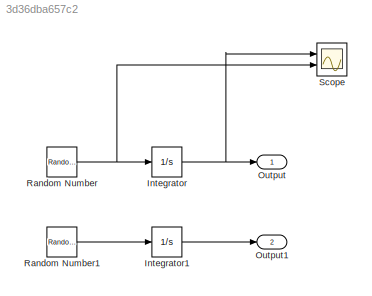
MODEL slx_3d36dba657c2
KIND model
CONFIG AbsTol = auto
CONFIG EnableMultiTasking = off
CONFIG FixedStep = 0.1
CONFIG MaxStep = auto
CONFIG MinStep = auto
CONFIG RelTol = 1e-3
CONFIG SampleTimeConstraint = Unconstrained
CONFIG SolverName = ode45
CONFIG StartTime = 1
CONFIG StopTime = 10
BLOCK [Integrator] Integrator
  Ports = [1, 1]
BLOCK [Integrator] Integrator1
  Ports = [1, 1]
BLOCK [Outport] Output
BLOCK [Outport] Output1
  Port = 2
BLOCK [RandomNumber] Random Number
  SampleTime = 0.1
  Seed = seed61
BLOCK [RandomNumber] Random Number1
  SampleTime = 0.1
  Seed = seed62
BLOCK [Scope] Scope
  Floating = off
  NumInputPorts = 2
  Ports = [2]
  ScopeSpecificationString = Simulink.scopes.TimeScopeBlockCfg('CurrentConfiguration', extmgr.ConfigurationSet(extmgr.Configuration('Core','General UI',true),extmgr.Configuration('Core','Source UI',true),extmgr.Configuration('Sources','WiredSimulink',true),extmgr.Configuration('Visuals','Time Domain',true,'SerializedDisplays',{struct('MinYLimReal','-5.54552','MaxYLimReal','13.34197','YLabelReal','','MinYLimMag','0.00000','Max...<+1348ch>
LINE Integrator1:1 -> Output1:1
NET Integrator:1 -> Output:1, Scope:1
LINE Random Number1:1 -> Integrator1:1
NET Random Number:1 -> Integrator:1, Scope:2
note: NET lines group one-source signal fan-out (src -> all destinations, sorted); 1:1 wires keep LINE
